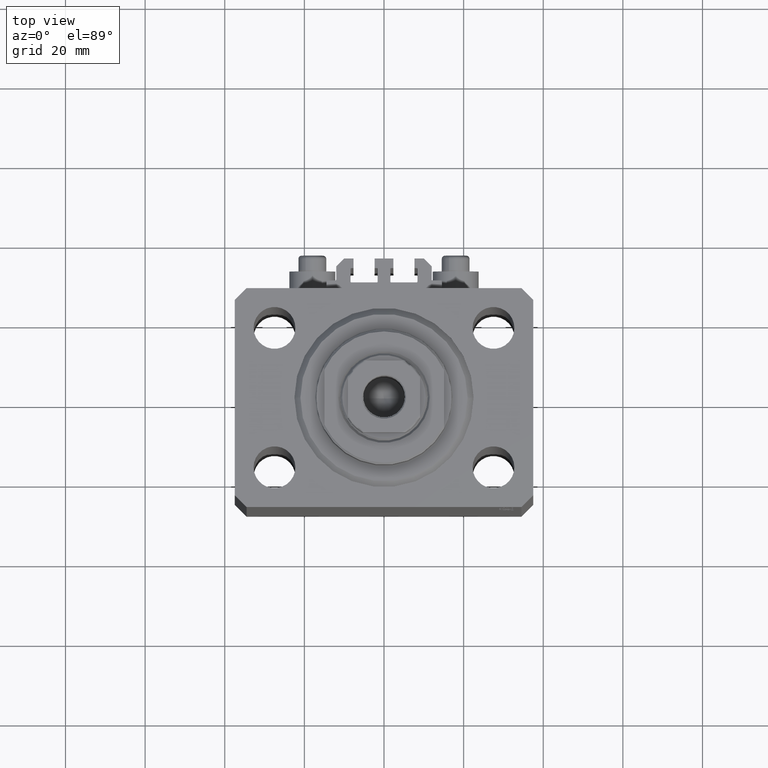
[diagram: clean part render]
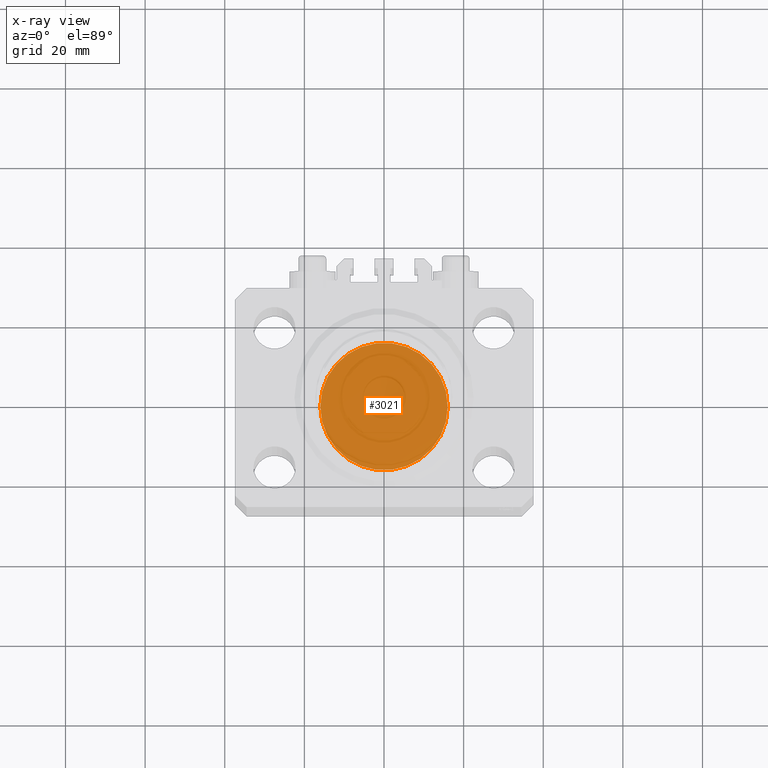
[diagram: x-ray — body ghosted, one internal face saturated and labeled with its STEP entity id]
A machine part, top view, then the same camera in x-ray: the body is ghosted and one INTERNAL B-rep face — a face not visible from any outside direction — is saturated and labeled: STEP entity #3021.
In plain terms, the highlighted planar face has unit normal (0, 0, 1).
Its self-contained STEP definition (entity closure, byte-faithful):
#1011 = DIRECTION ( 'NONE',  ( 0.000000000000000000, 0.000000000000000000, 1.000000000000000000 ) ) ;
#1327 = AXIS2_PLACEMENT_3D ( 'NONE', #37277, #33211, #33684 ) ;
#1525 = AXIS2_PLACEMENT_3D ( 'NONE', #25345, #21997, #40172 ) ;
#3021 = ADVANCED_FACE ( 'NONE', ( #33760 ), #18470, .F. ) ;
#14353 = VERTEX_POINT ( 'NONE', #43382 ) ;
#15362 = DIRECTION ( 'NONE',  ( 1.000000000000000000, 0.000000000000000000, -0.000000000000000000 ) ) ;
#17355 = CIRCLE ( 'NONE', #1327, 16.00000000000000000 ) ;
#18470 = PLANE ( 'NONE',  #38810 ) ;
#20575 = EDGE_CURVE ( 'NONE', #33822, #14353, #17355, .T. ) ;
#21997 = DIRECTION ( 'NONE',  ( 0.000000000000000000, 0.000000000000000000, 1.000000000000000000 ) ) ;
#24501 = ORIENTED_EDGE ( 'NONE', *, *, #20575, .F. ) ;
#25345 = CARTESIAN_POINT ( 'NONE',  ( 0.000000000000000000, 0.000000000000000000, 0.000000000000000000 ) ) ;
#25880 = CARTESIAN_POINT ( 'NONE',  ( 0.000000000000000000, 0.000000000000000000, 0.000000000000000000 ) ) ;
#27174 = EDGE_LOOP ( 'NONE', ( #24501, #43220 ) ) ;
#30877 = EDGE_CURVE ( 'NONE', #14353, #33822, #41974, .T. ) ;
#31157 = CARTESIAN_POINT ( 'NONE',  ( -16.00000000000000000, 0.000000000000000000, 0.000000000000000000 ) ) ;
#33211 = DIRECTION ( 'NONE',  ( 0.000000000000000000, 0.000000000000000000, 1.000000000000000000 ) ) ;
#33684 = DIRECTION ( 'NONE',  ( 1.000000000000000000, 0.000000000000000000, 0.000000000000000000 ) ) ;
#33760 = FACE_OUTER_BOUND ( 'NONE', #27174, .T. ) ;
#33822 = VERTEX_POINT ( 'NONE', #31157 ) ;
#37277 = CARTESIAN_POINT ( 'NONE',  ( 0.000000000000000000, 0.000000000000000000, 0.000000000000000000 ) ) ;
#38810 = AXIS2_PLACEMENT_3D ( 'NONE', #25880, #1011, #15362 ) ;
#40172 = DIRECTION ( 'NONE',  ( 1.000000000000000000, 0.000000000000000000, 0.000000000000000000 ) ) ;
#41974 = CIRCLE ( 'NONE', #1525, 16.00000000000000000 ) ;
#43220 = ORIENTED_EDGE ( 'NONE', *, *, #30877, .F. ) ;
#43382 = CARTESIAN_POINT ( 'NONE',  ( 16.00000000000000000, 1.959434878635765131E-15, 0.000000000000000000 ) ) ;